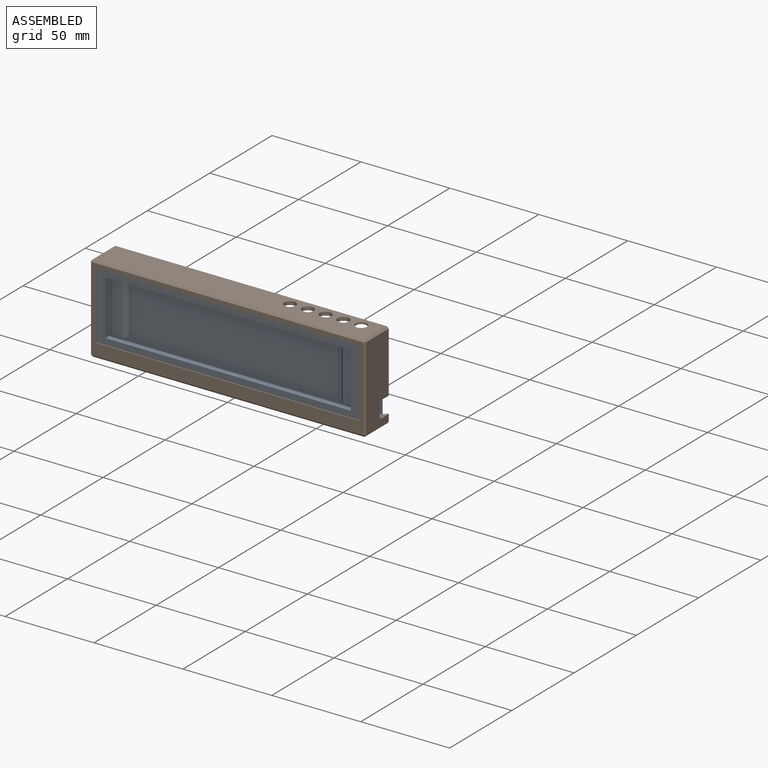
[diagram: assembled view]
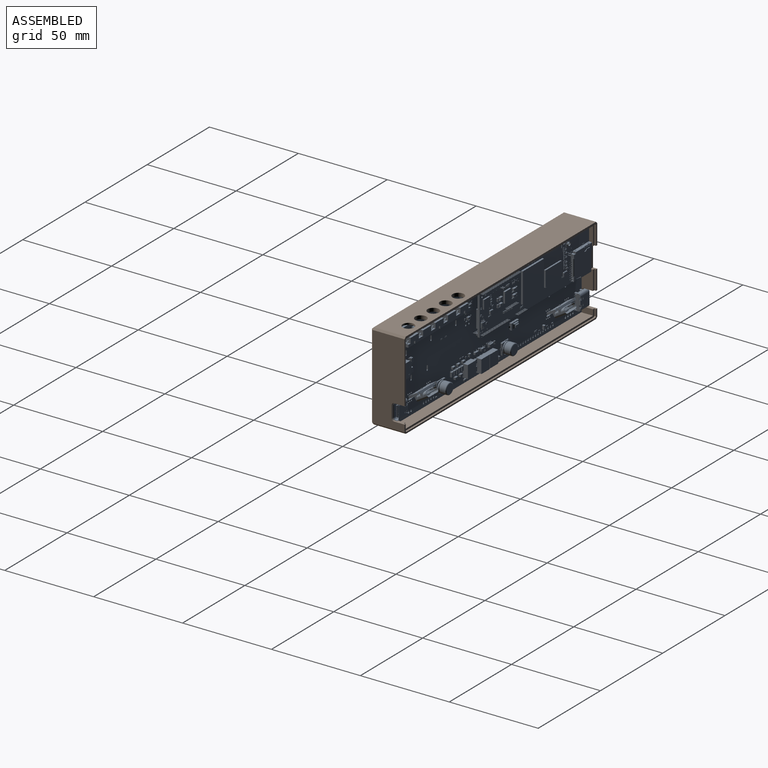
[diagram: assembled view, second angle]
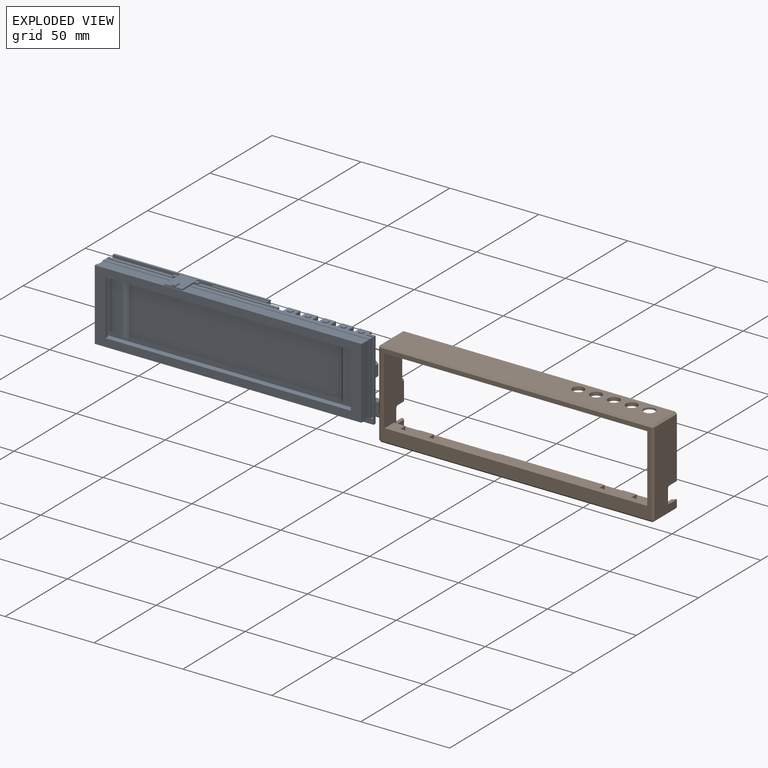
[diagram: exploded view]
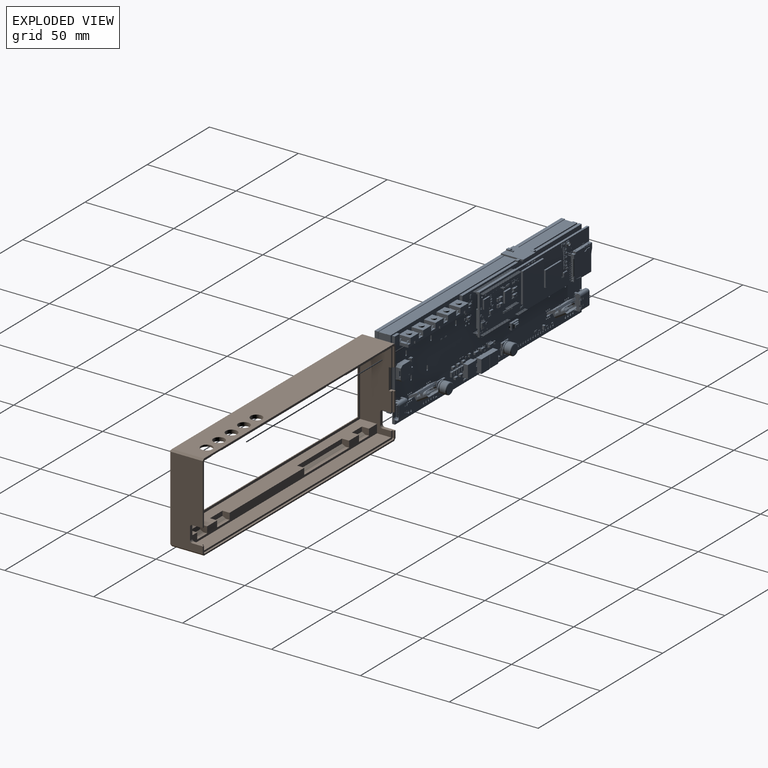
[diagram: exploded view, second angle]
FCSTD DOCUMENT  (FreeCAD 2022.430R28641 (Git))
Label: CK3B-II
License: All rights reserved
LicenseURL: http://en.wikipedia.org/wiki/All_rights_reserved
objects: Sketcher::SketchObject×14, PartDesign::Pocket×12, App::Link×5, App::Part×4, PartDesign::Chamfer×3, PartDesign::Body×2, PartDesign::Pad×1
note: 64 computed .brp shape members not serialized (recipe doc carries the construction recipe); baked Part::Feature solids carry a one-line shape summary decoded from their .brp
EXTERNAL_REF file=futaba_base_v0r2/futaba_base_v0r2-OnlyUSB.FCStd obj=Board_a1b6
EXTERNAL_REF file=futaba_base_v0r2/futaba_base_v0r2-OnlyButtom.FCStd obj=Board_8054
EXTERNAL_REF file=futaba_base_v0r2/futaba_base_v0r2-OnlySenser.FCStd obj=Board_21a3
EXTERNAL_REF file=futaba_base_v0r2/futaba_base_v0r2-OnlyMain.FCStd obj=Board_711e

FEATURE [App::Link] Link  label="futaba_base_v0r2-OnlyUSB"
  AutoLinkLabel = true
  AutoPlacement = true
  LinkPlacement = pos=(11.5,0,1.2) rot=(1,0,0;0rad)
  LinkedObject = -> <external futaba_base_v0r2/futaba_base_v0r2-OnlyUSB.FCStd>#Board_a1b6
  Placement = pos=(11.5,0,1.2) rot=(1,0,0;0rad)
  SyncGroupVisibility = false
  TreeRank = 1
  _LinkVersion = 1
FEATURE [App::Link] Link001  label="futaba_base_v0r2-OnlyButtom"
  AutoLinkLabel = true
  AutoPlacement = true
  LinkPlacement = pos=(4,-6,-1.6) rot=(1,0,0;1.5708rad)
  LinkedObject = -> <external futaba_base_v0r2/futaba_base_v0r2-OnlyButtom.FCStd>#Board_8054
  Placement = pos=(4,-6,-1.6) rot=(1,0,0;1.5708rad)
  SyncGroupVisibility = false
  TreeRank = 5
  _LinkVersion = 1
FEATURE [App::Link] Link002  label="futaba_base_v0r2-OnlySenser"
  AutoLinkLabel = true
  AutoPlacement = true
  LinkPlacement = pos=(101,0,1.4) rot=(1,0,0;1.5708rad)
  LinkedObject = -> <external futaba_base_v0r2/futaba_base_v0r2-OnlySenser.FCStd>#Board_21a3
  Placement = pos=(101,0,1.4) rot=(1,0,0;1.5708rad)
  SyncGroupVisibility = false
  TreeRank = 6
  _LinkVersion = 1
FEATURE [App::Link] Link003  label="futaba_base_v0r2-OnlyMain"
  AutoLinkLabel = true
  AutoPlacement = true
  LinkedObject = -> <external futaba_base_v0r2/futaba_base_v0r2-OnlyMain.FCStd>#Board_711e
  SyncGroupVisibility = false
  TreeRank = 7
  _LinkVersion = 1
FEATURE [App::Link] Link004  label="futaba_base_v0r2-OnlyUSB001"
  AutoLinkLabel = true
  AutoPlacement = true
  LinkPlacement = pos=(122.5,0,1.2) rot=(1,0,0;0rad)
  LinkedObject = -> <external futaba_base_v0r2/futaba_base_v0r2-OnlyUSB.FCStd>#Board_a1b6
  Placement = pos=(122.5,0,1.2) rot=(1,0,0;0rad)
  SyncGroupVisibility = false
  TreeRank = 4
  _LinkVersion = 1
FEATURE [App::Part] Part001
  ClaimAllChildren = false
  ExportMode = 1
  Group = -> [Link,Link004]
  Origin = -> Origin001
  Placement = pos=(0,1.02462,0) rot=(1,0,0;1.02334rad)
  TreeRank = 24
  _ExportChildren = -> [Link,Link004]
  _GroupVersion = 1
FEATURE [Sketcher::SketchObject] Sketch
  FullyConstrained = true
  MapMode = 5
  Placement = pos=(0,0,0) rot=(-0.57735,0.57735,0.57735;4.18879rad)
  Support = -> [YZ_Plane001]
  TreeRank = 35
  sketch-geometry (4):
    g0: LineSegment [constr] StartX=-2 StartY=0 StartZ=0 EndX=-2 EndY=1.6 EndZ=0
    g1: LineSegment [constr] StartX=-2 StartY=1.6 StartZ=0 EndX=0 EndY=1.6 EndZ=0
    g2: LineSegment StartX=-2 StartY=1.6 StartZ=0 EndX=-1.02462 EndY=0 EndZ=0
    g3: LineSegment StartX=0 StartY=0.624621 StartZ=0 EndX=-1.02462 EndY=0 EndZ=0
  constraints (13):
    c: PointOnObject(g0,g-1)
    c: Vertical(g0)
    c: DistanceX(g0,g-1) = 2
    c: Coincident(g1,g0)
    c: PointOnObject(g1,g-2)
    c: DistanceY(g-1,g1) = 1.6
    c: Horizontal(g1)
    c: Coincident(g2,g0)
    c: PointOnObject(g2,g-1)
    c: PointOnObject(g3,g-2)
    c: Coincident(g3,g2)
    c: Distance(g3) = 1.2
    c: Perpendicular(g3,g2)
FEATURE [PartDesign::Body] Body
  AutoGroupSolids = false
  ClaimAllChildren = false
  ExportMode = 0
  Group = -> [Sketch]
  Origin = -> Origin002
  TreeRank = 34
  _ExportChildren = -> [Sketch]
  _GroupVersion = 1
FEATURE [App::Part] Part
  ClaimAllChildren = false
  ExportMode = 1
  Group = -> [Part001,Body]
  Origin = -> Origin
  Placement = pos=(0,-36.5,-1.6) rot=(1,0,0;0rad)
  TreeRank = 3
  _ExportChildren = -> [Part001,Body]
  _GroupVersion = 1
FEATURE [App::Part] Part002  label="Electronic"
  ClaimAllChildren = false
  ExportMode = 0
  Group = -> [Part,Link001,Link002,Link003]
  Origin = -> Origin003
  Placement = pos=(75,11.9,40) rot=(0,0.707107,0.707107;3.14159rad)
  TreeRank = 38
  _ExportChildren = -> [Part,Link001,Link002,Link003]
  _GroupVersion = 1
FEATURE [Sketcher::SketchObject] Sketch001
  FullyConstrained = true
  MapMode = 5
  Placement = pos=(0,0,0) rot=(0.57735,0.57735,0.57735;2.0944rad)
  Support = -> [YZ_Plane002]
  TreeRank = 52
  sketch-geometry (5):
    g0: LineSegment StartX=19 StartY=-7 StartZ=0 EndX=19 EndY=42.4 EndZ=0
    g1: LineSegment StartX=0 StartY=42.4 StartZ=0 EndX=0 EndY=0 EndZ=0
    g2: LineSegment StartX=0 StartY=42.4 StartZ=0 EndX=19 EndY=42.4 EndZ=0
    g3: LineSegment StartX=0 StartY=0 StartZ=0 EndX=0 EndY=-7 EndZ=0
    g4: LineSegment StartX=0 StartY=-7 StartZ=0 EndX=19 EndY=-7 EndZ=0
  constraints (14):
    c: Distance(g1) = 42.4
    c: Coincident(g2,g1)
    c: Coincident(g2,g0)
    c: Horizontal(g2)
    c: Vertical(g1)
    c: Vertical(g0)
    c: Coincident(g1,g-1)
    c: DistanceX(g2,g2) = 19
    c: Coincident(g3,g1)
    c: Vertical(g3)
    c: DistanceY(g3,g3) = 7
    c: Coincident(g4,g3)
    c: Coincident(g4,g0)
    c: Horizontal(g4)
FEATURE [PartDesign::Pad] Pad  label="体"
  ClaimChildren = false
  Direction = (1,1,1)
  Fit = 0
  FitJoin = 0
  InnerFit = 0
  InnerFitJoin = 0
  InnerTaperAngle = 0
  InnerTaperAngleRev = 0
  Length = 154.8
  Length2 = 100
  Linearize = true
  Midplane = true
  NewSolid = false
  Placement = pos=(0,0,0) rot=(0.57735,0.57735,0.57735;2.0944rad)
  Profile = -> Sketch001
  Suppress = false
  TreeRank = 53
  Type = 0
  _ProfileBasedVersion = 1
FEATURE [Sketcher::SketchObject] Sketch002
  AttachmentOffset = pos=(0,0,-0.5) rot=(0,0,1;0rad)
  FullyConstrained = true
  MapMode = 5
  Placement = pos=(2e-16,0.5,-1e-16) rot=(-0.57735,-0.57735,0.57735;4.18879rad)
  Support = -> [Pad]
  TreeRank = 54
  sketch-geometry (4):
    g0: LineSegment StartX=0 StartY=75 StartZ=0 EndX=-40 EndY=75 EndZ=0
    g1: LineSegment StartX=-40 StartY=75 StartZ=0 EndX=-40 EndY=-75 EndZ=0
    g2: LineSegment StartX=-40 StartY=-75 StartZ=0 EndX=0 EndY=-75 EndZ=0
    g3: LineSegment StartX=0 StartY=-75 StartZ=0 EndX=0 EndY=75 EndZ=0
  constraints (11):
    c: Coincident(g0,g1)
    c: Vertical(g1)
    c: Coincident(g1,g2)
    c: Horizontal(g2)
    c: Coincident(g2,g3)
    c: Coincident(g3,g0)
    c: Horizontal(g0)
    c: DistanceX(g0,g0) = 40
    c: PointOnObject(g-1,g3)
    c: DistanceY(g3,g3) = 150
    c: Symmetric(g0,g2,g-1)
FEATURE [PartDesign::Pocket] Pocket  label="屏幕挖空"
  BaseFeature = -> Pad
  ClaimChildren = false
  Fit = 0
  FitJoin = 0
  InnerFit = 0
  InnerFitJoin = 0
  InnerTaperAngle = 0
  InnerTaperAngleRev = 0
  Length = 5
  Length2 = 100
  Linearize = true
  NewSolid = false
  Placement = pos=(0,0,0) rot=(0.57735,0.57735,0.57735;2.0944rad)
  Profile = -> Sketch002
  Suppress = false
  TreeRank = 55
  Type = 1
  _ProfileBasedVersion = 1
FEATURE [Sketcher::SketchObject] Sketch003
  AttachmentOffset = pos=(0,0,-6) rot=(0,0,1;0rad)
  ExternalGeometry = -> [Pocket]
  FullyConstrained = true
  MapMode = 5
  Placement = pos=(2.3e-15,6,-1e-15) rot=(-0.57735,-0.57735,0.57735;4.18879rad)
  Support = -> [Pad]
  TreeRank = 56
  sketch-geometry (24):
    g0: LineSegment StartX=0 StartY=69 StartZ=0 EndX=4 EndY=69 EndZ=0
    g1: LineSegment StartX=4 StartY=69 StartZ=0 EndX=4 EndY=61 EndZ=0
    g2: LineSegment StartX=4 StartY=61 StartZ=0 EndX=0 EndY=61 EndZ=0
    g3: LineSegment StartX=0 StartY=61 StartZ=0 EndX=0 EndY=69 EndZ=0
    g4: LineSegment StartX=0 StartY=53 StartZ=0 EndX=4 EndY=53 EndZ=0
    g5: LineSegment StartX=4 StartY=53 StartZ=0 EndX=4 EndY=43 EndZ=0
    g6: LineSegment StartX=4 StartY=43 StartZ=0 EndX=0 EndY=43 EndZ=0
    g7: LineSegment StartX=0 StartY=43 StartZ=0 EndX=0 EndY=53 EndZ=0
    g8: LineSegment StartX=0 StartY=-17 StartZ=0 EndX=4 EndY=-17 EndZ=0
    g9: LineSegment StartX=4 StartY=-17 StartZ=0 EndX=4 EndY=-53 EndZ=0
    g10: LineSegment StartX=4 StartY=-53 StartZ=0 EndX=0 EndY=-53 EndZ=0
    g11: LineSegment StartX=0 StartY=-53 StartZ=0 EndX=0 EndY=-17 EndZ=0
    g12: LineSegment StartX=0 StartY=-61 StartZ=0 EndX=4 EndY=-61 EndZ=0
    g13: LineSegment StartX=4 StartY=-61 StartZ=0 EndX=4 EndY=-69 EndZ=0
    g14: LineSegment StartX=4 StartY=-69 StartZ=0 EndX=0 EndY=-69 EndZ=0
    g15: LineSegment StartX=0 StartY=-69 StartZ=0 EndX=0 EndY=-61 EndZ=0
    g16: LineSegment StartX=-41.4 StartY=69 StartZ=0 EndX=-40 EndY=69 EndZ=0
    g17: LineSegment StartX=-40 StartY=69 StartZ=0 EndX=-40 EndY=61 EndZ=0
    g18: LineSegment StartX=-40 StartY=61 StartZ=0 EndX=-41.4 EndY=61 EndZ=0
    g19: LineSegment StartX=-41.4 StartY=61 StartZ=0 EndX=-41.4 EndY=69 EndZ=0
    g20: LineSegment StartX=-41.4 StartY=-61 StartZ=0 EndX=-40 EndY=-61 EndZ=0
    g21: LineSegment StartX=-40 StartY=-61 StartZ=0 EndX=-40 EndY=-69 EndZ=0
    g22: LineSegment StartX=-40 StartY=-69 StartZ=0 EndX=-41.4 EndY=-69 EndZ=0
    g23: LineSegment StartX=-41.4 StartY=-69 StartZ=0 EndX=-41.4 EndY=-61 EndZ=0
  constraints (72):
    c: Coincident(g0,g1)
    c: Coincident(g1,g2)
    c: Coincident(g2,g3)
    c: Coincident(g3,g0)
    c: Horizontal(g0)
    c: Horizontal(g2)
    c: Vertical(g1)
    c: Vertical(g3)
    c: PointOnObject(g-1,g3)
    c: Coincident(g4,g5)
    c: Coincident(g5,g6)
    c: Coincident(g6,g7)
    c: Coincident(g7,g4)
    c: Horizontal(g4)
    c: Horizontal(g6)
    c: Vertical(g5)
    c: Vertical(g7)
    c: Coincident(g8,g9)
    c: Coincident(g9,g10)
    c: Coincident(g10,g11)
    c: Coincident(g11,g8)
    c: Horizontal(g8)
    c: Horizontal(g10)
    c: Vertical(g9)
    c: Vertical(g11)
    c: Coincident(g12,g13)
    c: Coincident(g13,g14)
    c: Coincident(g14,g15)
    c: Coincident(g15,g12)
    c: Horizontal(g12)
    c: Horizontal(g14)
    c: Vertical(g13)
    c: Vertical(g15)
    c: PointOnObject(g-1,g11)
    c: PointOnObject(g-1,g15)
    c: PointOnObject(g-1,g7)
    c: Vertical(g1,g4)
    c: Vertical(g5,g8)
    c: Vertical(g9,g12)
    c: Distance(g0,g-3) = 6
    c: DistanceY(g3,g3) = 8
    c: DistanceY(g4,g2) = 8
    c: DistanceY(g7,g7) = 10
    c: DistanceX(g0,g0) = 4
    c: Distance(g14,g-4) = 6
    c: DistanceY(g15,g15) = 8
    c: DistanceY(g12,g10) = 8
    c: DistanceY(g11,g11) = 36
    c: Coincident(g16,g17)
    c: Coincident(g17,g18)
    c: Coincident(g18,g19)
    c: Coincident(g19,g16)
    c: Horizontal(g16)
    c: Horizontal(g18)
    c: Vertical(g17)
    c: Vertical(g19)
    c: Coincident(g20,g21)
    c: Coincident(g21,g22)
    c: Coincident(g22,g23)
    c: Coincident(g23,g20)
    c: Horizontal(g20)
    c: Horizontal(g22)
    c: Vertical(g21)
    c: Vertical(g23)
    c: PointOnObject(g16,g-5)
    c: DistanceX(g16,g16) = 1.4
    c: Horizontal(g16,g0)
    c: Horizontal(g17,g2)
    c: Vertical(g20,g17)
    c: Vertical(g20,g18)
    c: Horizontal(g20,g12)
    c: Horizontal(g21,g14)
FEATURE [Sketcher::SketchObject] Sketch004
  AttachmentOffset = pos=(0,0,-10) rot=(0,0,1;0rad)
  FullyConstrained = true
  MapMode = 5
  Placement = pos=(3.9e-15,10,-1.7e-15) rot=(-0.57735,-0.57735,0.57735;4.18879rad)
  Support = -> [Pad]
  TreeRank = 58
  sketch-geometry (4):
    g0: LineSegment StartX=0 StartY=75 StartZ=0 EndX=4.8 EndY=75 EndZ=0
    g1: LineSegment StartX=4.8 StartY=75 StartZ=0 EndX=4.8 EndY=-75 EndZ=0
    g2: LineSegment StartX=4.8 StartY=-75 StartZ=0 EndX=0 EndY=-75 EndZ=0
    g3: LineSegment StartX=0 StartY=-75 StartZ=0 EndX=0 EndY=75 EndZ=0
  constraints (11):
    c: Coincident(g0,g1)
    c: Coincident(g1,g2)
    c: Coincident(g2,g3)
    c: Coincident(g3,g0)
    c: Horizontal(g0)
    c: Horizontal(g2)
    c: Vertical(g1)
    c: PointOnObject(g-1,g3)
    c: Symmetric(g0,g2,g-1)
    c: DistanceY(g3,g3) = 150
    c: DistanceX(g0,g0) = 4.8
FEATURE [Sketcher::SketchObject] Sketch005
  ExternalGeometry = -> [Pocket]
  FullyConstrained = true
  MapMode = 5
  Placement = pos=(2e-16,0.5,-1e-16) rot=(0.57735,0.57735,0.57735;4.18879rad)
  Support = -> [Pocket]
  TreeRank = 60
  sketch-geometry (4):
    g0: LineSegment StartX=1 StartY=74 StartZ=0 EndX=39 EndY=74 EndZ=0
    g1: LineSegment StartX=39 StartY=74 StartZ=0 EndX=39 EndY=-74 EndZ=0
    g2: LineSegment StartX=39 StartY=-74 StartZ=0 EndX=1 EndY=-74 EndZ=0
    g3: LineSegment StartX=1 StartY=-74 StartZ=0 EndX=1 EndY=74 EndZ=0
  constraints (12):
    c: Coincident(g0,g1)
    c: Coincident(g1,g2)
    c: Coincident(g2,g3)
    c: Coincident(g3,g0)
    c: Horizontal(g0)
    c: Horizontal(g2)
    c: Vertical(g1)
    c: Vertical(g3)
    c: Distance(g0,g-3) = 1
    c: DistanceX(g-2,g0) = 1
    c: Distance(g1,g-5) = 1
    c: Distance(g1,g-4) = 1
FEATURE [PartDesign::Pocket] Pocket003  label="屏幕正面挖空"
  BaseFeature = -> Pocket
  ClaimChildren = false
  Fit = 0
  FitJoin = 0
  InnerFit = 0
  InnerFitJoin = 0
  InnerTaperAngle = 0
  InnerTaperAngleRev = 0
  Length = 5
  Length2 = 100
  Linearize = true
  NewSolid = false
  Placement = pos=(0,0,0) rot=(0.57735,0.57735,0.57735;2.0944rad)
  Profile = -> Sketch005
  Suppress = false
  TreeRank = 61
  Type = 1
  _ProfileBasedVersion = 1
FEATURE [Sketcher::SketchObject] Sketch007
  FullyConstrained = true
  MapMode = 5
  Placement = pos=(0,0,0) rot=(0.57735,0.57735,0.57735;2.0944rad)
  Support = -> [YZ_Plane002]
  TreeRank = 64
  sketch-geometry (7):
    g0: LineSegment StartX=13 StartY=7.35 StartZ=0 EndX=21.8 EndY=7.35 EndZ=0
    g1: LineSegment StartX=21.8 StartY=7.35 StartZ=0 EndX=21.8 EndY=-1.95 EndZ=0
    g2: LineSegment StartX=21.8 StartY=-1.95 StartZ=0 EndX=13 EndY=-1.95 EndZ=0
    g3: LineSegment StartX=11.8 StartY=6.15 StartZ=0 EndX=11.8 EndY=-0.75 EndZ=0
    g4: ArcOfCircle CenterX=13 CenterY=6.15 CenterZ=0 NormalX=0 NormalY=0 NormalZ=1 AngleXU=0 Radius=1.2 StartAngle=1.5708 EndAngle=3.14159
    g5: ArcOfCircle CenterX=13 CenterY=-0.75 CenterZ=0 NormalX=0 NormalY=0 NormalZ=1 AngleXU=0 Radius=1.2 StartAngle=3.14159 EndAngle=4.71239
    g6: GeomPoint [constr] X=21.8 Y=2.7 Z=0
  constraints (17):
    c: Horizontal(g0)
    c: Coincident(g0,g1)
    c: Vertical(g1)
    c: Coincident(g1,g2)
    c: Horizontal(g2)
    c: Vertical(g3)
    c: Tangent(g5,g3) = -1.5708
    c: Tangent(g4,g0) = 1.5708
    c: Tangent(g5,g2) = 1.5708
    c: Tangent(g4,g3) = -1.5708
    c: Equal(g4,g5)
    c: DistanceY(g1,g1) = 9.3
    c: Radius(g4) = 1.2
    c: Distance(g-1,g3) = 11.8
    c: Symmetric(g0,g1,g6)
    c: DistanceY(g-1,g6) = 2.7
    c: Distance(g1,g3) = 10
FEATURE [Sketcher::SketchObject] Sketch010
  ExternalGeometry = -> [Pocket]
  FullyConstrained = true
  MapMode = 5
  Placement = pos=(-4.4e-15,1.56e-14,40) rot=(0.707107,0.707107,0;3.14159rad)
  Support = -> [Pocket]
  TreeRank = 70
  sketch-geometry (5):
    g0: Circle CenterX=13.2 CenterY=66 CenterZ=0 NormalX=0 NormalY=0 NormalZ=1 AngleXU=0 Radius=3.2
    g1: Circle CenterX=13.2 CenterY=56 CenterZ=0 NormalX=0 NormalY=0 NormalZ=1 AngleXU=0 Radius=3.2
    g2: Circle CenterX=13.2 CenterY=46 CenterZ=0 NormalX=0 NormalY=0 NormalZ=1 AngleXU=0 Radius=3.2
    g3: Circle CenterX=13.2 CenterY=36 CenterZ=0 NormalX=0 NormalY=0 NormalZ=1 AngleXU=0 Radius=3.2
    g4: Circle CenterX=13.2 CenterY=26 CenterZ=0 NormalX=0 NormalY=0 NormalZ=1 AngleXU=0 Radius=3.2
  constraints (15):
    c: Distance(g0,g-3) = 9
    c: DistanceX(g-2,g0) = 13.2
    c: Diameter(g0) = 6.4
    c: Equal(g0,g1)
    c: Equal(g1,g2)
    c: Equal(g2,g3)
    c: Equal(g3,g4)
    c: Vertical(g0,g1)
    c: Vertical(g1,g2)
    c: Vertical(g2,g3)
    c: Vertical(g3,g4)
    c: DistanceY(g1,g0) = 10
    c: DistanceY(g2,g1) = 10
    c: DistanceY(g3,g2) = 10
    c: DistanceY(g4,g3) = 10
FEATURE [Sketcher::SketchObject] Sketch016
  FullyConstrained = true
  MapMode = 5
  Placement = pos=(-77.4,1.7e-14,-1.7e-14) rot=(0.57735,0.57735,-0.57735;4.18879rad)
  Support = -> [Pad]
  TreeRank = 108
  sketch-geometry (4):
    g0: LineSegment StartX=16.6 StartY=-18.2 StartZ=0 EndX=21.6 EndY=-18.2 EndZ=0
    g1: LineSegment StartX=21.6 StartY=-18.2 StartZ=0 EndX=21.6 EndY=-30.2 EndZ=0
    g2: LineSegment StartX=21.6 StartY=-30.2 StartZ=0 EndX=16.6 EndY=-30.2 EndZ=0
    g3: LineSegment StartX=16.6 StartY=-30.2 StartZ=0 EndX=16.6 EndY=-18.2 EndZ=0
  constraints (12):
    c: Coincident(g0,g1)
    c: Coincident(g1,g2)
    c: Coincident(g2,g3)
    c: Coincident(g3,g0)
    c: Horizontal(g0)
    c: Horizontal(g2)
    c: Vertical(g1)
    c: Vertical(g3)
    c: DistanceY(g-1,g0) = -18.2
    c: DistanceX(g-1,g0) = 16.6
    c: DistanceX(g2,g2) = 5
    c: DistanceY(g1,g1) = 12
FEATURE [Sketcher::SketchObject] Sketch021
  ExternalGeometry = -> [Pocket]
  FullyConstrained = true
  MapMode = 5
  Placement = pos=(2e-16,0.5,-1e-16) rot=(0.57735,0.57735,0.57735;4.18879rad)
  Support = -> [Pocket]
  TreeRank = 131
  sketch-geometry (4):
    g0: LineSegment StartX=-0.4 StartY=75.4 StartZ=0 EndX=40.4 EndY=75.4 EndZ=0
    g1: LineSegment StartX=40.4 StartY=75.4 StartZ=0 EndX=40.4 EndY=-75.4 EndZ=0
    g2: LineSegment StartX=40.4 StartY=-75.4 StartZ=0 EndX=-0.4 EndY=-75.4 EndZ=0
    g3: LineSegment StartX=-0.4 StartY=-75.4 StartZ=0 EndX=-0.4 EndY=75.4 EndZ=0
  constraints (12):
    c: Coincident(g0,g1)
    c: Coincident(g1,g2)
    c: Coincident(g2,g3)
    c: Coincident(g3,g0)
    c: Horizontal(g0)
    c: Horizontal(g2)
    c: Vertical(g1)
    c: Vertical(g3)
    c: DistanceX(g-2,g2) = -0.4
    c: Distance(g2,g-5) = 0.4
    c: Distance(g0,g-3) = 0.4
    c: Distance(g0,g-4) = 0.4
FEATURE [PartDesign::Pocket] Pocket018  label="屏幕挖空补偿"
  BaseFeature = -> Pocket003
  ClaimChildren = false
  Fit = 0
  FitJoin = 0
  InnerFit = 0
  InnerFitJoin = 0
  InnerTaperAngle = 0
  InnerTaperAngleRev = 0
  Length = 5
  Length2 = 100
  Linearize = true
  NewSolid = false
  Placement = pos=(0,0,0) rot=(0.57735,0.57735,0.57735;2.0944rad)
  Profile = -> Sketch021
  Reversed = true
  Suppress = false
  TreeRank = 132
  Type = 1
  _ProfileBasedVersion = 1
FEATURE [PartDesign::Pocket] Pocket001  label="屏幕引线"
  BaseFeature = -> Pocket018
  ClaimChildren = false
  Fit = 0
  FitJoin = 0
  InnerFit = 0
  InnerFitJoin = 0
  InnerTaperAngle = 0
  InnerTaperAngleRev = 0
  Length = 5
  Length2 = 100
  Linearize = true
  NewSolid = false
  Placement = pos=(0,0,0) rot=(0.57735,0.57735,0.57735;2.0944rad)
  Profile = -> Sketch003
  Suppress = false
  TreeRank = 57
  Type = 1
  _ProfileBasedVersion = 1
FEATURE [Sketcher::SketchObject] Sketch006
  AttachmentOffset = pos=(0,0,0.4) rot=(0,0,1;0rad)
  ExternalGeometry = -> [Pocket,Pocket018]
  FullyConstrained = true
  MapMode = 5
  Placement = pos=(4e-16,0.9,-2e-16) rot=(0.57735,0.57735,0.57735;4.18879rad)
  Support = -> [Pocket]
  TreeRank = 62
  sketch-geometry (5):
    g0: LineSegment StartX=41.4 StartY=-39 StartZ=0 EndX=40.4 EndY=-39 EndZ=0
    g1: LineSegment StartX=40.4 StartY=-39 StartZ=0 EndX=40.4 EndY=-23 EndZ=0
    g2: LineSegment StartX=40.4 StartY=-23 StartZ=0 EndX=41.4 EndY=-23 EndZ=0
    g3: GeomPoint [constr] X=40.4 Y=-31 Z=0
    g4: LineSegment StartX=41.4 StartY=-23 StartZ=0 EndX=41.4 EndY=-39 EndZ=0
  constraints (13):
    c: Coincident(g0,g1)
    c: Coincident(g1,g2)
    c: Horizontal(g0)
    c: Horizontal(g2)
    c: Vertical(g1)
    c: DistanceX(g2,g2) = 1
    c: DistanceY(g0,g2) = 16
    c: Distance(g3,g-4) = 44
    c: Symmetric(g0,g1,g3)
    c: Coincident(g2,g4)
    c: Vertical(g4)
    c: PointOnObject(g3,g-5)
    c: Coincident(g4,g0)
FEATURE [PartDesign::Chamfer] Chamfer  label="引线补强倒角"
  Angle = 45
  Base = -> Pocket001 [Edge96,Edge91,Edge86,Edge81]
  BaseFeature = -> Pocket001
  ChamferType = 1
  FlipDirection = false
  NewSolid = false
  Placement = pos=(0,0,0) rot=(0.57735,0.57735,0.57735;2.0944rad)
  Size = 2
  Size2 = 1
  SupportTransform = false
  Suppress = false
  TreeRank = 101
FEATURE [PartDesign::Pocket] Pocket002  label="主板位"
  BaseFeature = -> Chamfer
  ClaimChildren = false
  Fit = 0
  FitJoin = 0
  InnerFit = 0
  InnerFitJoin = 0
  InnerTaperAngle = 0
  InnerTaperAngleRev = 0
  Length = 5
  Length2 = 100
  Linearize = true
  NewSolid = false
  Placement = pos=(0,0,0) rot=(0.57735,0.57735,0.57735;2.0944rad)
  Profile = -> Sketch004
  Suppress = false
  TreeRank = 59
  Type = 1
  _ProfileBasedVersion = 1
FEATURE [Sketcher::SketchObject] Sketch022
  ExternalGeometry = -> [Pocket002]
  FullyConstrained = true
  MapMode = 5
  Placement = pos=(4.4e-15,10,-5.2e-15) rot=(0.57735,0.57735,0.57735;4.18879rad)
  Support = -> [Pocket002]
  TreeRank = 133
  sketch-geometry (4):
    g0: LineSegment StartX=-5.2 StartY=75.4 StartZ=0 EndX=0 EndY=75.4 EndZ=0
    g1: LineSegment StartX=0 StartY=75.4 StartZ=0 EndX=0 EndY=-75.4 EndZ=0
    g2: LineSegment StartX=0 StartY=-75.4 StartZ=0 EndX=-5.2 EndY=-75.4 EndZ=0
    g3: LineSegment StartX=-5.2 StartY=-75.4 StartZ=0 EndX=-5.2 EndY=75.4 EndZ=0
  constraints (11):
    c: Coincident(g0,g1)
    c: Coincident(g1,g2)
    c: Coincident(g2,g3)
    c: Coincident(g3,g0)
    c: Horizontal(g0)
    c: Horizontal(g2)
    c: Vertical(g1)
    c: Vertical(g3)
    c: Symmetric(g1,g0,g-1)
    c: Distance(g0,g-4) = 0.4
    c: Distance(g0,g-3) = 0.4
FEATURE [PartDesign::Pocket] Pocket019  label="主板位补偿"
  BaseFeature = -> Pocket002
  ClaimChildren = false
  Fit = 0
  FitJoin = 0
  InnerFit = 0
  InnerFitJoin = 0
  InnerTaperAngle = 0
  InnerTaperAngleRev = 0
  Length = 5
  Length2 = 100
  Linearize = true
  NewSolid = false
  Placement = pos=(0,0,0) rot=(0.57735,0.57735,0.57735;2.0944rad)
  Profile = -> Sketch022
  Reversed = true
  Suppress = false
  TreeRank = 134
  Type = 1
  _ProfileBasedVersion = 1
FEATURE [PartDesign::Pocket] Pocket004  label="光传感器"
  BaseFeature = -> Pocket019
  ClaimChildren = false
  Fit = 0
  FitJoin = 0
  InnerFit = 0
  InnerFitJoin = 0
  InnerTaperAngle = 0
  InnerTaperAngleRev = 0
  Length = 0
  Length2 = 100
  Linearize = true
  NewSolid = false
  Offset = -1
  Placement = pos=(0,0,0) rot=(0.57735,0.57735,0.57735;2.0944rad)
  Profile = -> Sketch006
  Reversed = true
  Suppress = false
  TreeRank = 63
  Type = 3
  UpToFace = -> Pad [Face1]
  _ProfileBasedVersion = 1
FEATURE [Sketcher::SketchObject] Sketch008
  AttachmentOffset = pos=(0,0,-1) rot=(0,0,1;0rad)
  ExternalGeometry = -> [Pocket018,Pocket019]
  FullyConstrained = true
  MapMode = 5
  Placement = pos=(8e-15,18,-4e-15) rot=(0.57735,0.57735,0.57735;4.18879rad)
  Support = -> [Pad]
  TreeRank = 66
  sketch-geometry (4):
    g0: LineSegment StartX=41.4 StartY=76.4 StartZ=0 EndX=-6.2 EndY=76.4 EndZ=0
    g1: LineSegment StartX=-6.2 StartY=76.4 StartZ=0 EndX=-6.2 EndY=-76.4 EndZ=0
    g2: LineSegment StartX=-6.2 StartY=-76.4 StartZ=0 EndX=41.4 EndY=-76.4 EndZ=0
    g3: LineSegment StartX=41.4 StartY=-76.4 StartZ=0 EndX=41.4 EndY=76.4 EndZ=0
  constraints (12):
    c: Coincident(g0,g1)
    c: Coincident(g1,g2)
    c: Coincident(g2,g3)
    c: Coincident(g3,g0)
    c: Horizontal(g0)
    c: Horizontal(g2)
    c: Vertical(g1)
    c: Vertical(g3)
    c: Distance(g2,g-5) = 1
    c: Distance(g2,g-3) = 1
    c: Distance(g0,g-6) = 1
    c: Distance(g0,g-7) = 1
FEATURE [Sketcher::SketchObject] Sketch020
  ExternalGeometry = -> [Pocket004]
  FullyConstrained = true
  MapMode = 5
  Placement = pos=(-1.38e-14,2.07e-14,41.4) rot=(0.707107,0.707107,0;3.14159rad)
  Support = -> [Pocket004]
  TreeRank = 135
  sketch-geometry (5):
    g0: LineSegment StartX=0.9 StartY=-29.5 StartZ=0 EndX=5.9 EndY=-29.5 EndZ=0
    g1: LineSegment StartX=5.9 StartY=-29.5 StartZ=0 EndX=5.9 EndY=-32.5 EndZ=0
    g2: LineSegment StartX=5.9 StartY=-32.5 StartZ=0 EndX=0.9 EndY=-32.5 EndZ=0
    g3: GeomPoint [constr] X=0.9 Y=-31 Z=0
    g4: LineSegment StartX=0.9 StartY=-29.5 StartZ=0 EndX=0.9 EndY=-32.5 EndZ=0
  constraints (12):
    c: Horizontal(g0)
    c: Coincident(g0,g1)
    c: Vertical(g1)
    c: Coincident(g1,g2)
    c: Horizontal(g2)
    c: DistanceX(g0,g0) = 5
    c: Symmetric(g2,g0,g3)
    c: Coincident(g4,g0)
    c: Coincident(g4,g2)
    c: Vertical(g4)
    c: Distance(g4) = 3
    c: Symmetric(g-3,g-3,g3)
FEATURE [PartDesign::Pocket] Pocket017  label="光传感器元件高度"
  BaseFeature = -> Pocket004
  ClaimChildren = false
  Fit = 0
  FitJoin = 0
  InnerFit = 0
  InnerFitJoin = 0
  InnerTaperAngle = 0
  InnerTaperAngleRev = 0
  Length = 0.2
  Length2 = 100
  Linearize = true
  NewSolid = false
  Placement = pos=(0,0,0) rot=(0.57735,0.57735,0.57735;2.0944rad)
  Profile = -> Sketch020
  Suppress = false
  TreeRank = 118
  Type = 0
  _ProfileBasedVersion = 1
FEATURE [PartDesign::Pocket] Pocket005  label="USB"
  BaseFeature = -> Pocket017
  ClaimChildren = false
  Fit = 0
  FitJoin = 0
  InnerFit = 0
  InnerFitJoin = 0
  InnerTaperAngle = 0
  InnerTaperAngleRev = 0
  Length = 5
  Length2 = 100
  Linearize = true
  Midplane = true
  NewSolid = false
  Placement = pos=(0,0,0) rot=(0.57735,0.57735,0.57735;2.0944rad)
  Profile = -> Sketch007
  Suppress = false
  TreeRank = 65
  Type = 1
  _ProfileBasedVersion = 1
FEATURE [PartDesign::Pocket] Pocket012  label="TF"
  BaseFeature = -> Pocket005
  ClaimChildren = false
  Fit = 0
  FitJoin = 0
  InnerFit = 0
  InnerFitJoin = 0
  InnerTaperAngle = 0
  InnerTaperAngleRev = 0
  Length = 10
  Length2 = 100
  Linearize = true
  NewSolid = false
  Placement = pos=(0,0,0) rot=(0.57735,0.57735,0.57735;2.0944rad)
  Profile = -> Sketch016
  Suppress = false
  TreeRank = 109
  Type = 0
  _ProfileBasedVersion = 1
FEATURE [PartDesign::Pocket] Pocket006  label="盖板沉入"
  BaseFeature = -> Pocket012
  ClaimChildren = false
  Fit = 0
  FitJoin = 0
  InnerFit = 0
  InnerFitJoin = 0
  InnerTaperAngle = 0
  InnerTaperAngleRev = 0
  Length = 5
  Length2 = 100
  Linearize = true
  NewSolid = false
  Placement = pos=(0,0,0) rot=(0.57735,0.57735,0.57735;2.0944rad)
  Profile = -> Sketch008
  Reversed = true
  Suppress = false
  TreeRank = 67
  Type = 1
  _ProfileBasedVersion = 1
FEATURE [PartDesign::Pocket] Pocket008  label="按钮"
  BaseFeature = -> Pocket006
  ClaimChildren = false
  Fit = 0
  FitJoin = 0
  InnerFit = 0
  InnerFitJoin = 0
  InnerTaperAngle = 0
  InnerTaperAngleRev = 0
  Length = 5
  Length2 = 100
  Linearize = true
  NewSolid = false
  Placement = pos=(0,0,0) rot=(0.57735,0.57735,0.57735;2.0944rad)
  Profile = -> Sketch010
  Suppress = false
  TreeRank = 71
  Type = 1
  _ProfileBasedVersion = 1
FEATURE [PartDesign::Chamfer] Chamfer001  label="正面倒角"
  Angle = 45
  Base = -> Pocket008 [Edge224,Edge225,Edge251,Edge252,Edge270,Edge255,Edge222,Edge272]
  BaseFeature = -> Pocket008
  ChamferType = 0
  FlipDirection = false
  NewSolid = false
  Placement = pos=(0,0,0) rot=(0.57735,0.57735,0.57735;2.0944rad)
  Size = 1
  Size2 = 1
  SupportTransform = false
  Suppress = false
  TreeRank = 102
FEATURE [PartDesign::Chamfer] Chamfer002  label="盖板优化倒角"
  Angle = 45
  Base = -> Chamfer001 [Edge84,Edge94,Edge131,Edge129]
  BaseFeature = -> Chamfer001
  ChamferType = 0
  FlipDirection = false
  NewSolid = false
  Placement = pos=(0,0,0) rot=(0.57735,0.57735,0.57735;2.0944rad)
  Size = 0.5
  Size2 = 1
  SupportTransform = false
  Suppress = false
  TreeRank = 103
FEATURE [PartDesign::Body] Body001  label="外框"
  AutoGroupSolids = false
  ClaimAllChildren = false
  ExportMode = 0
  Group = -> [Sketch001,Pad,Sketch002,Sketch003,Sketch004,Sketch008,Sketch016,Pocket,Sketch005,Sketch006,Sketch010,Pocket003,Sketch021,Pocket018,Pocket001,Chamfer,Pocket002,Sketch022,Pocket019,Pocket004,Sketch007,Sketch020,Pocket017,Pocket005,Pocket012,Pocket006,Pocket008,Chamfer001,Chamfer002]
  Origin = -> Origin005
  Tip = -> Chamfer002
  TreeRank = 51
  _ExportChildren = -> [Pad,Pocket,Pocket003,Pocket018,Pocket001,Chamfer,Pocket002,Pocket019,Pocket004,Pocket017,Pocket005,Pocket012,Pocket006,Pocket008,Chamfer001,Chamfer002]
  _GroupVersion = 1
FEATURE [App::Part] Part003  label="Shield"
  ClaimAllChildren = false
  ExportMode = 1
  Group = -> [Body001]
  Origin = -> Origin004
  TreeRank = 41
  _ExportChildren = -> [Body001]
  _GroupVersion = 1

RESOLVED EXTERNAL PARTS (link-assembly join: the EXTERNAL_REF files above that resolve inside this repo's crawl, each included once):
---- part futaba_base_v0r2/futaba_base_v0r2-OnlyButtom.FCStd = doc fcstd_e1ba07b49b63 ----
FCSTD DOCUMENT  (FreeCAD 2022.430R28641 (Git))
Label: futaba_base_v0r2-OnlyButtom
License: All rights reserved
LicenseURL: http://en.wikipedia.org/wiki/All_rights_reserved
objects: App::Part×4, App::Link×4, Part::Feature×2
note: 2 computed .brp shape members not serialized (recipe doc carries the construction recipe); baked Part::Feature solids carry a one-line shape summary decoded from their .brp

FEATURE [Part::Feature] Pcb_8054
  TreeRank = 0
  shape: bbox 50 x 6.4 x 1.6 mm, 21 faces (baked)
FEATURE [App::Part] Board_Geoms_8054
  ClaimAllChildren = false
  ExportMode = 1
  Group = -> [Pcb_8054]
  Origin = -> Origin
  TreeRank = 0
  _ExportChildren = -> [Pcb_8054]
  _GroupVersion = 1
FEATURE [Part::Feature] Shape  label="SW5_Áã¼þ1_ff458c263895"
  Placement = pos=(45,3.2,-1.6) rot=(0,0.707107,-0.707107;3.14159rad)
  TreeRank = 0
  shape: bbox 9.9 x 6.5 x 3.5 mm, 45 faces (baked)
FEATURE [App::Link] SW5_________1_ff458c263895_ln_  label="SW3_Áã¼þ1_bfd08f6032b9"
  AutoLinkLabel = false
  AutoPlacement = true
  LinkPlacement = pos=(25,3.2,-1.6) rot=(0,0.707107,-0.707107;3.14159rad)
  LinkedObject = -> Shape
  Placement = pos=(25,3.2,-1.6) rot=(0,0.707107,-0.707107;3.14159rad)
  SyncGroupVisibility = false
  TreeRank = 0
  _LinkVersion = 1
FEATURE [App::Link] SW5_________1_ff458c263895_ln_001  label="SW1_Áã¼þ1_d8c861bfb7ac"
  AutoLinkLabel = false
  AutoPlacement = true
  LinkPlacement = pos=(5,3.2,-1.6) rot=(0,0.707107,-0.707107;3.14159rad)
  LinkedObject = -> Shape
  Placement = pos=(5,3.2,-1.6) rot=(0,0.707107,-0.707107;3.14159rad)
  SyncGroupVisibility = false
  TreeRank = 0
  _LinkVersion = 1
FEATURE [App::Link] SW5_________1_ff458c263895_ln_002  label="SW2_Áã¼þ1_0276e8dd2714"
  AutoLinkLabel = false
  AutoPlacement = true
  LinkPlacement = pos=(15,3.2,-1.6) rot=(0,0.707107,-0.707107;3.14159rad)
  LinkedObject = -> Shape
  Placement = pos=(15,3.2,-1.6) rot=(0,0.707107,-0.707107;3.14159rad)
  SyncGroupVisibility = false
  TreeRank = 0
  _LinkVersion = 1
FEATURE [App::Link] SW5_________1_ff458c263895_ln_003  label="SW4_Áã¼þ1_75ba99306a9d"
  AutoLinkLabel = false
  AutoPlacement = true
  LinkPlacement = pos=(35,3.2,-1.6) rot=(0,0.707107,-0.707107;3.14159rad)
  LinkedObject = -> Shape
  Placement = pos=(35,3.2,-1.6) rot=(0,0.707107,-0.707107;3.14159rad)
  SyncGroupVisibility = false
  TreeRank = 0
  _LinkVersion = 1
FEATURE [App::Part] Bot_8054
  ClaimAllChildren = false
  ExportMode = 1
  Group = -> [Shape,SW5_________1_ff458c263895_ln_,SW5_________1_ff458c263895_ln_001,SW5_________1_ff458c263895_ln_002,SW5_________1_ff458c263895_ln_003]
  Origin = -> Origin004
  TreeRank = 0
  _ExportChildren = -> [Shape,SW5_________1_ff458c263895_ln_,SW5_________1_ff458c263895_ln_001,SW5_________1_ff458c263895_ln_002,SW5_________1_ff458c263895_ln_003]
  _GroupVersion = 1
FEATURE [App::Part] Step_Models_8054
  ClaimAllChildren = false
  ExportMode = 1
  Group = -> [Bot_8054]
  Origin = -> Origin002
  TreeRank = 0
  _ExportChildren = -> [Bot_8054]
  _GroupVersion = 1
FEATURE [App::Part] Board_8054  label="futaba_base_v0r2-OnlyButtom"
  ClaimAllChildren = false
  ExportMode = 1
  Group = -> [Board_Geoms_8054,Step_Models_8054]
  Origin = -> Origin001
  TreeRank = 0
  _ExportChildren = -> [Board_Geoms_8054,Step_Models_8054]
  _GroupVersion = 1
